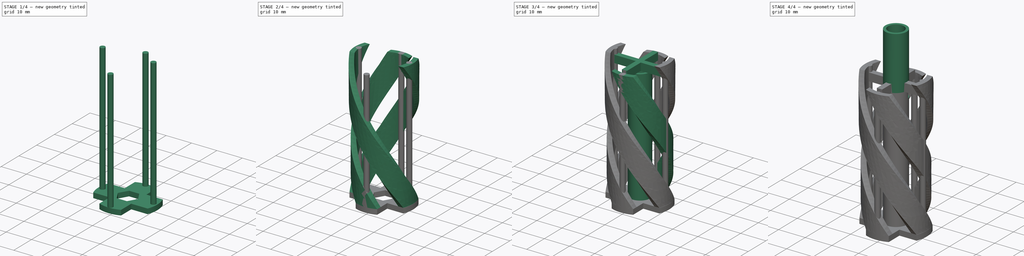
[diagram: build sequence overview — one tinted view per stage of 4, left to right]
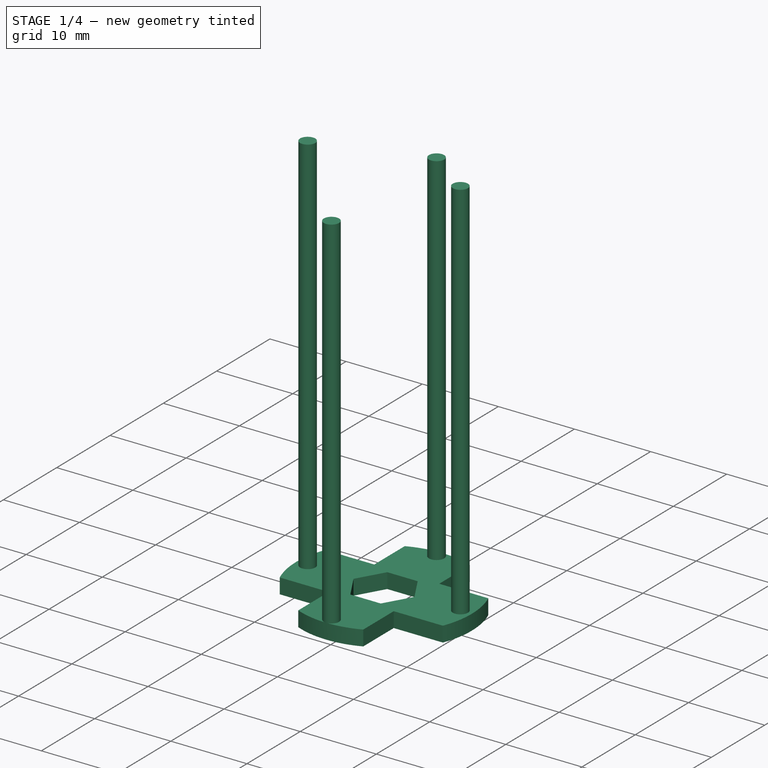
[diagram: stage 1 of 4 — iso view after this stage's code; geometry added in this stage tinted green]
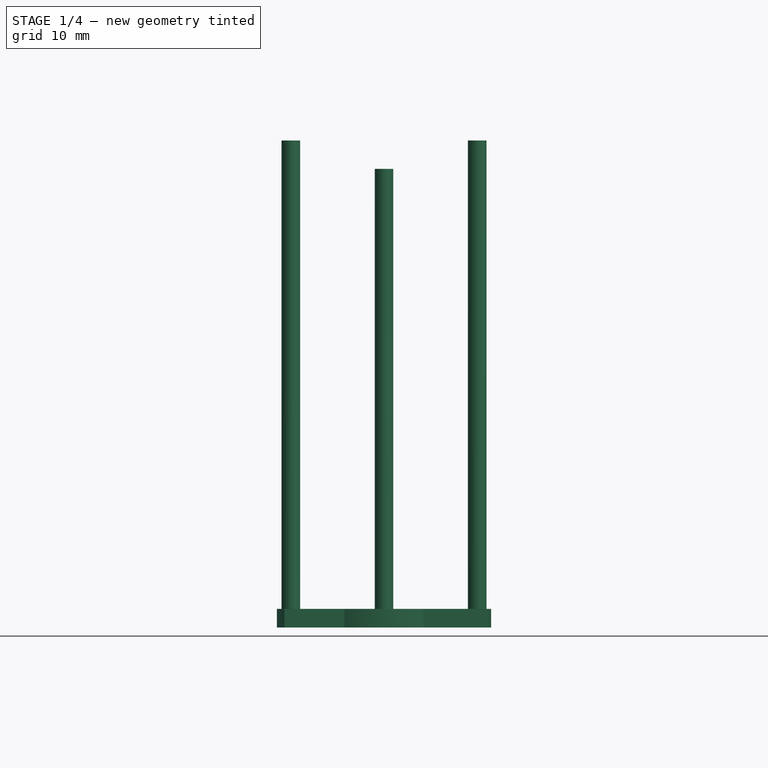
[diagram: stage 1 of 4 — front view after this stage's code; geometry added in this stage tinted green]
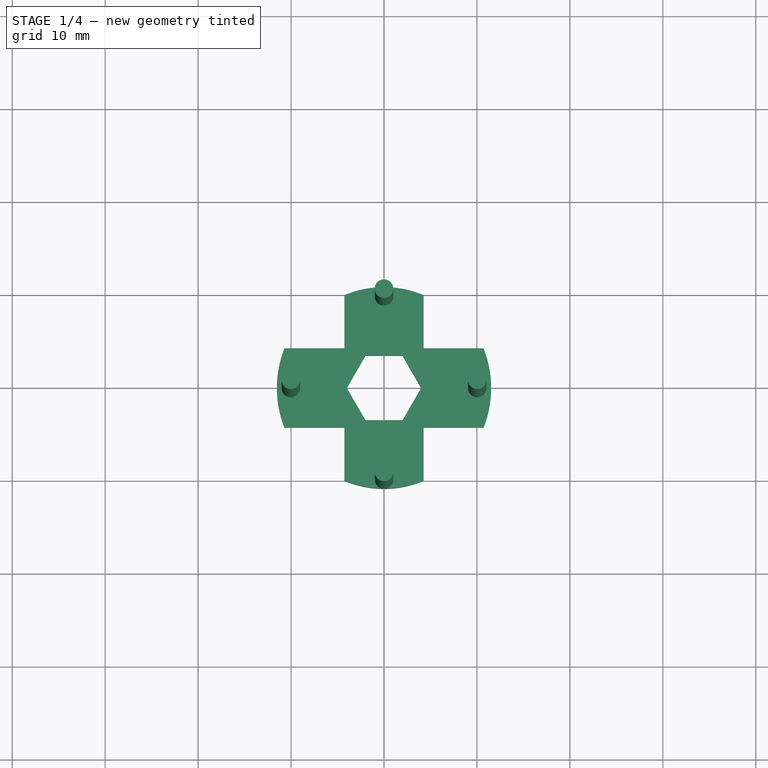
[diagram: stage 1 of 4 — top view after this stage's code; geometry added in this stage tinted green]
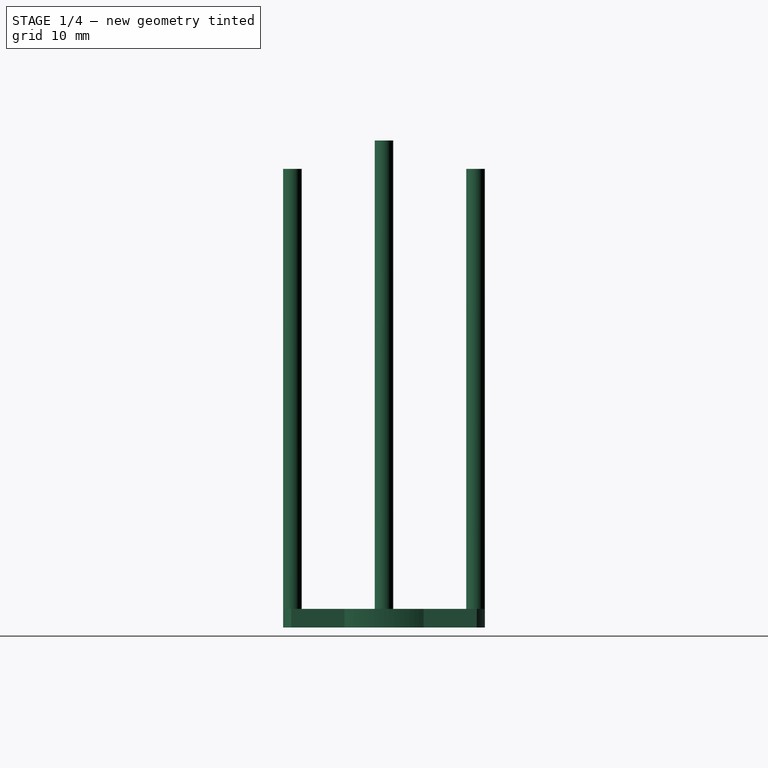
[diagram: stage 1 of 4 — right view after this stage's code; geometry added in this stage tinted green]
FCSTD DOCUMENT  (FreeCAD 0.21R33771 (Git))
Label: QfhAntenna1700
License: All rights reserved
LicenseURL: http://en.wikipedia.org/wiki/All_rights_reserved
objects: Sketcher::SketchObject×11, PartDesign::Pad×7, PartDesign::AdditiveHelix×2, PartDesign::PolarPattern×2, PartDesign::Pocket×2, PartDesign::Body×2, Spreadsheet::Sheet×1, App::DocumentObjectGroup×1
note: 37 computed .brp shape members not serialized (recipe doc carries the construction recipe); baked Part::Feature solids carry a one-line shape summary decoded from their .brp

FEATURE [Spreadsheet::Sheet] Spreadsheet  label="NumbersForRight"
  cells = B1='Info; C1='https://jcoppens.com/ant/qfh/calc.en.php; A2='f0; B2(f0)=1700000000; A3='#turns; B3(turns)=0.5; A4='H1; B4(H1Large)=52.4; C4='@1700 MHz; A5='D1; B5(D1Large)=23.06; A6='H2; B6(H2Small)=49.35; A7='D2; B7(D2Small)=21.71; A8='radiusInner; B8(radiusInner)=4; A9='margin; B9(margin)=0.2; A10='widthFoil; B10(widthFoil)=5; A11='helixThickness; B11(helixThickness)=2; A12='heightSmall; B12(heightSmall)==H1Large - H2Small - helixThickness; C12='Padding to hold small helix between large; A13='radiusCenter; B13(radiusCenter)=6; A14='direction; B14(direction)=0; A15='helixElevation; B15(helixElevation)==atan(H1Large / (pi * D1Large)); A16='helixBase; B16(helixBase)==widthFoil / sin(helixElevation); A17='lengthSleeve; B17(lengthSleeve)==0.24 * 300000000 / f0; B18='Calculated; C18='Do not change
FEATURE [Sketcher::SketchObject] Sketch
  FullyConstrained = true
  MapMode = 5
  Support = -> [XY_Plane]
  expr: Constraints[1] = Spreadsheet.helixBase
  expr: Constraints[25] = Spreadsheet.helixBase
  expr: Constraints[29] = Spreadsheet.D2Small
  expr: Constraints[4] = Spreadsheet.D1Large
  expr: Constraints[50] = 8
  sketch-geometry (19):
    g0: ArcOfCircle CenterX=0 CenterY=0 CenterZ=0 NormalX=0 NormalY=0 NormalZ=1 AngleXU=0 Radius=11.53 StartAngle=2.76262 EndAngle=3.52057
    g1: ArcOfCircle CenterX=0 CenterY=0 CenterZ=0 NormalX=0 NormalY=0 NormalZ=1 AngleXU=0 Radius=11.53 StartAngle=5.90421 EndAngle=6.66216
    g2: ArcOfCircle CenterX=0 CenterY=0 CenterZ=0 NormalX=0 NormalY=0 NormalZ=1 AngleXU=0 Radius=10.855 StartAngle=1.16693 EndAngle=1.97466
    g3: ArcOfCircle CenterX=0 CenterY=0 CenterZ=0 NormalX=0 NormalY=0 NormalZ=1 AngleXU=0 Radius=10.855 StartAngle=4.30853 EndAngle=5.11625
    g4: LineSegment StartX=-10.7119 StartY=4.26572 StartZ=0 EndX=-4.26572 EndY=4.26572 EndZ=0
    g5: LineSegment StartX=-4.26572 StartY=4.26572 StartZ=0 EndX=-4.26572 EndY=9.98172 EndZ=0
    g6: LineSegment StartX=4.26572 StartY=9.98172 StartZ=0 EndX=4.26572 EndY=4.26572 EndZ=0
    g7: LineSegment StartX=4.26572 StartY=4.26572 StartZ=0 EndX=10.7119 EndY=4.26572 EndZ=0
    g8: LineSegment StartX=10.7119 StartY=-4.26572 StartZ=0 EndX=4.26572 EndY=-4.26572 EndZ=0
    g9: LineSegment StartX=4.26572 StartY=-4.26572 StartZ=0 EndX=4.26572 EndY=-9.98172 EndZ=0
    g10: LineSegment StartX=-10.7119 StartY=-4.26572 StartZ=0 EndX=-4.26572 EndY=-4.26572 EndZ=0
    g11: LineSegment StartX=-4.26572 StartY=-4.26572 StartZ=0 EndX=-4.26572 EndY=-9.98172 EndZ=0
    g12: LineSegment StartX=2 StartY=-3.4641 StartZ=0 EndX=4 EndY=1e-16 EndZ=0
    g13: LineSegment StartX=4 StartY=2e-16 StartZ=0 EndX=2 EndY=3.4641 EndZ=0
    g14: LineSegment StartX=2 StartY=3.4641 StartZ=0 EndX=-2 EndY=3.4641 EndZ=0
    g15: LineSegment StartX=-2 StartY=3.4641 StartZ=0 EndX=-4 EndY=4e-16 EndZ=0
    g16: LineSegment StartX=-4 StartY=3e-16 StartZ=0 EndX=-2 EndY=-3.4641 EndZ=0
    g17: LineSegment StartX=-2 StartY=-3.4641 StartZ=0 EndX=2 EndY=-3.4641 EndZ=0
    g18: Circle CenterX=0 CenterY=0 CenterZ=0 NormalX=0 NormalY=0 NormalZ=1 AngleXU=0 Radius=4
  constraints (48):
    c: Coincident(g0,g-1)
    c: DistanceY(g0,g0) = 8.53144
    c: Horizontal(g0,g1)
    c: Symmetric(g0,g1,g-2)
    c: Distance(g0,g1) = 23.06
    c: Coincident(g0,g1)
    c: Coincident(g2,g0)
    c: Coincident(g3,g0)
    c: Symmetric(g2,g3,g-1)
    c: Vertical(g3,g2)
    c: Coincident(g4,g0)
    c: Horizontal(g4)
    c: Coincident(g5,g4)
    c: Coincident(g5,g2)
    c: Coincident(g6,g2)
    c: Vertical(g6)
    c: Coincident(g7,g6)
    c: Coincident(g7,g1)
    c: Coincident(g8,g1)
    c: Coincident(g9,g8)
    c: Coincident(g9,g3)
    c: Vertical(g9)
    c: Coincident(g10,g0)
    c: Coincident(g11,g10)
    c: Coincident(g11,g3)
    c: DistanceX(g2,g2) = 8.53144
    c: Perpendicular(g5,g4)
    c: Perpendicular(g11,g10)
    c: Perpendicular(g8,g9)
    c: Distance(g2,g3) = 21.71
    c: Symmetric(g4,g6,g-2)
    c: Symmetric(g4,g10,g-1)
    c: Coincident(g12,g13)
    c: Coincident(g13,g14)
    c: Coincident(g14,g15)
    c: Coincident(g15,g16)
    c: Coincident(g16,g17)
    c: Coincident(g17,g12)
    c: Equal(g12, g13-g17) x5
    c: PointOnObject(g12,g18)
    c: PointOnObject(g13,g18)
    c: PointOnObject(g14,g18)
    c: PointOnObject(g15,g18)
    c: PointOnObject(g16,g18)
    c: PointOnObject(g17,g18)
    c: Coincident(g18,g0)
    c: Diameter(g18) = 8
    c: Horizontal(g17)
FEATURE [PartDesign::Pad] Pad  label="BaseTop"
  Direction = (0,0,1)
  Length = 2
  Length2 = 10
  Profile = -> Sketch
  ReferenceAxis = -> Sketch [N_Axis]
  Type = 0
  expr: Length = Spreadsheet.helixThickness
FEATURE [Sketcher::SketchObject] Sketch046
  FullyConstrained = true
  MapMode = 5
  Placement = pos=(0,0,2) rot=(0,0,1;0rad)
  Support = -> [Pad]
  expr: Constraints[2] = Spreadsheet.D1Large - Spreadsheet.helixThickness - 1
  expr: Constraints[4] = Spreadsheet.helixThickness
  sketch-geometry (2):
    g0: Circle CenterX=-10.03 CenterY=0 CenterZ=0 NormalX=0 NormalY=0 NormalZ=1 AngleXU=0 Radius=1
    g1: Circle CenterX=10.03 CenterY=0 CenterZ=0 NormalX=0 NormalY=0 NormalZ=1 AngleXU=0 Radius=1
  constraints (5):
    c: PointOnObject(g0,g-1)
    c: Symmetric(g0,g1,g-2)
    c: DistanceX(g0,g1) = 20.06
    c: Equal(g1,g0)
    c: Diameter(g1) = 2
FEATURE [PartDesign::Pad] Pad036  label="LargeSupport"
  BaseFeature = -> Pad
  Direction = (0,0,1)
  Length = 50.4
  Length2 = 10
  Profile = -> Sketch046
  ReferenceAxis = -> Sketch046 [N_Axis]
  Type = 0
  expr: Length = Spreadsheet.H1Large - Spreadsheet.helixThickness
FEATURE [Sketcher::SketchObject] Sketch047
  FullyConstrained = true
  MapMode = 5
  Placement = pos=(0,0,2) rot=(0,0,1;0rad)
  Support = -> [Pad036]
  expr: Constraints[2] = Spreadsheet.D2Small - Spreadsheet.helixThickness
  expr: Constraints[4] = Spreadsheet.helixThickness
  sketch-geometry (2):
    g0: Circle CenterX=0 CenterY=9.855 CenterZ=0 NormalX=0 NormalY=0 NormalZ=1 AngleXU=0 Radius=1
    g1: Circle CenterX=0 CenterY=-9.855 CenterZ=0 NormalX=0 NormalY=0 NormalZ=1 AngleXU=0 Radius=1
  constraints (5):
    c: PointOnObject(g0,g-2)
    c: Symmetric(g0,g1,g-1)
    c: DistanceY(g1,g0) = 19.71
    c: Equal(g0,g1)
    c: Diameter(g0) = 2
FEATURE [PartDesign::Pad] Pad037  label="SmallSupport"
  BaseFeature = -> Pad036
  Direction = (0,0,1)
  Length = 47.35
  Length2 = 10
  Profile = -> Sketch047
  ReferenceAxis = -> Sketch047 [N_Axis]
  Type = 0
  expr: Length = Spreadsheet.H2Small - Spreadsheet.helixThickness
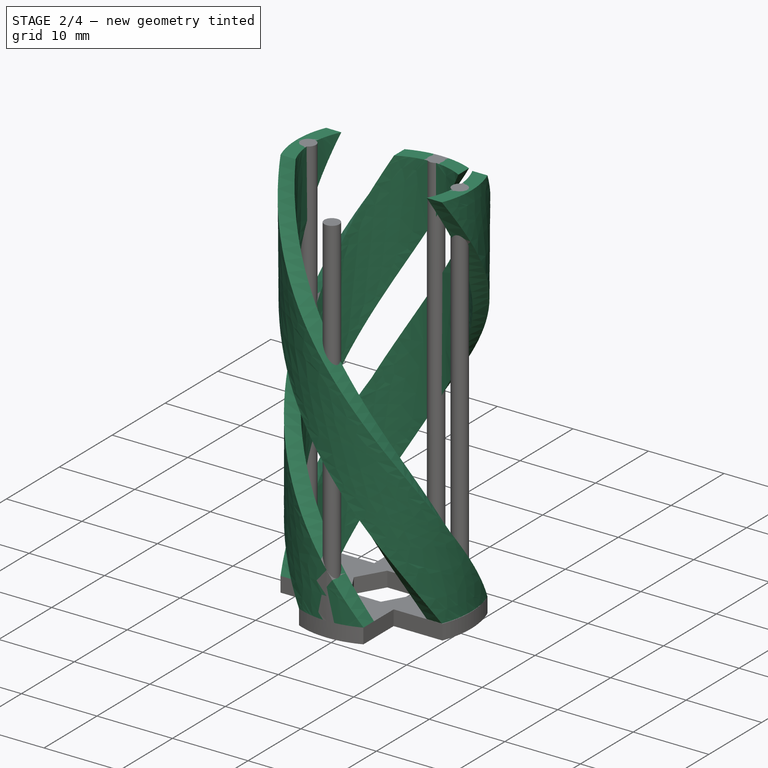
[diagram: stage 2 of 4 — iso view after this stage's code; geometry added in this stage tinted green]
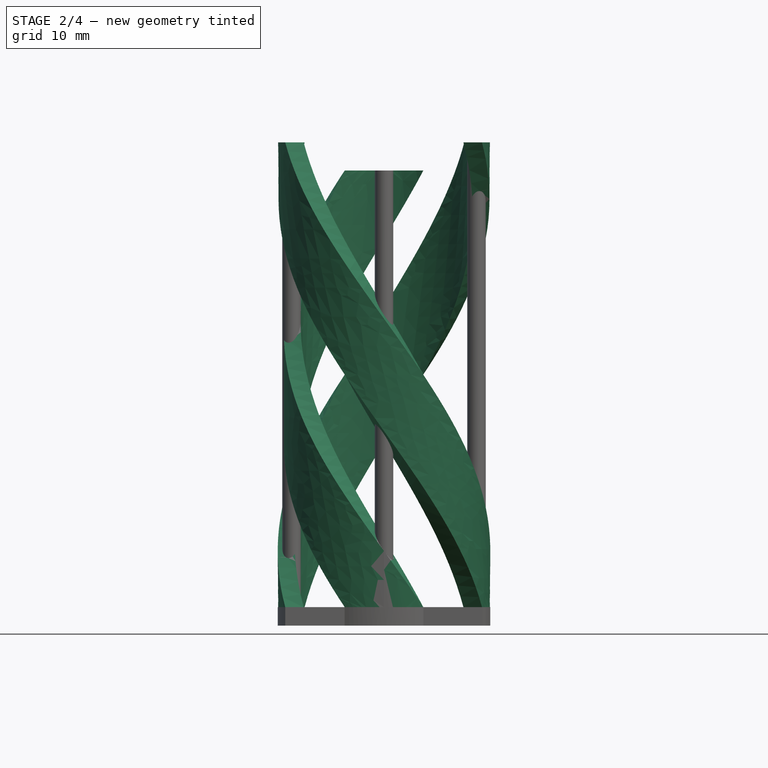
[diagram: stage 2 of 4 — front view after this stage's code; geometry added in this stage tinted green]
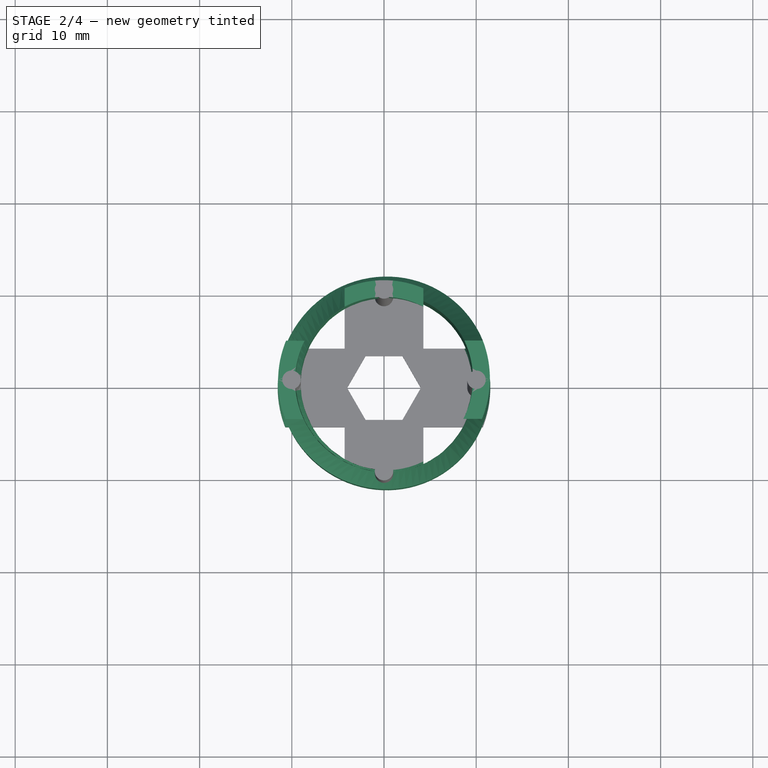
[diagram: stage 2 of 4 — top view after this stage's code; geometry added in this stage tinted green]
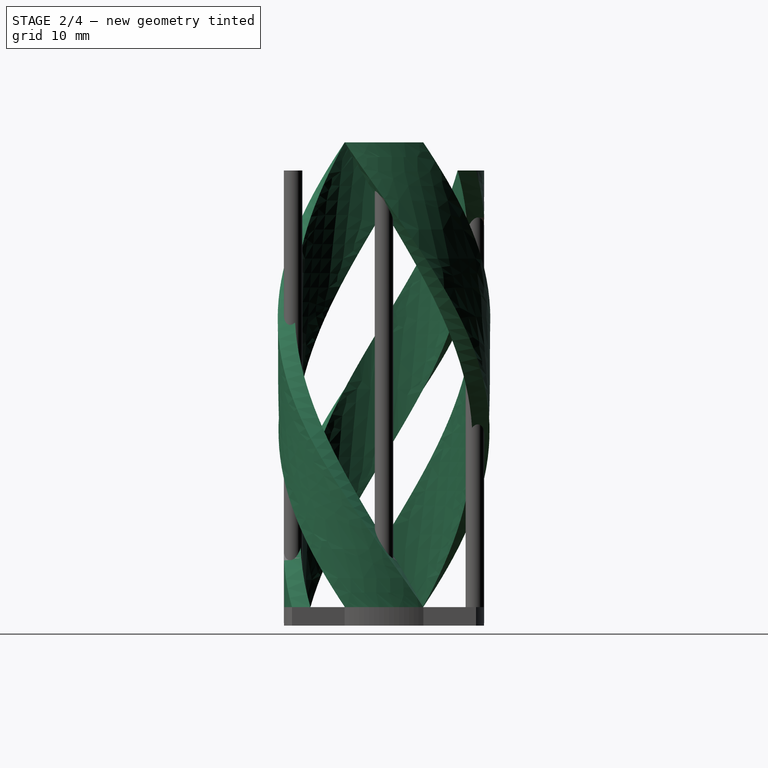
[diagram: stage 2 of 4 — right view after this stage's code; geometry added in this stage tinted green]
FEATURE [Sketcher::SketchObject] Sketch048
  ExternalGeometry = -> [Pad037]
  FullyConstrained = false
  MapMode = 5
  Placement = pos=(0,0,2) rot=(0,0,1;0rad)
  Support = -> [Pad037]
  expr: Constraints[3] = Spreadsheet.helixThickness
  sketch-geometry (4):
    g0: ArcOfCircle CenterX=0.00961287 CenterY=-0.11719 CenterZ=0 NormalX=0 NormalY=0 NormalZ=1 AngleXU=0 Radius=11.4961 StartAngle=2.75226 EndAngle=3.51079
    g1: LineSegment StartX=-10.6262 StartY=4.24638 StartZ=0 EndX=-8.61143 EndY=4.23625 EndZ=0
    g2: LineSegment StartX=-10.7119 StartY=-4.26572 StartZ=0 EndX=-8.71189 EndY=-4.26572 EndZ=0
    g3: ArcOfCircle CenterX=0.00961287 CenterY=-0.11719 CenterZ=0 NormalX=0 NormalY=0 NormalZ=1 AngleXU=0 Radius=9.65789 StartAngle=2.67397 EndAngle=3.58559
  constraints (8):
    c: Coincident(g1,g0)
    c: Coincident(g2,g0)
    c: Horizontal(g2)
    c: DistanceX(g2,g2) = 2
    c: Coincident(g3,g0)
    c: Coincident(g3,g1)
    c: Coincident(g3,g2)
    c: Coincident(g0,g-3)
FEATURE [PartDesign::AdditiveHelix] AdditiveHelix  label="LargeHelixA"
  Angle = 0
  Axis = (1e-16,1e-16,1)
  Base = (0,0,0)
  BaseFeature = -> Pad037
  Growth = 0
  HasBeenEdited = true
  Height = 50.4
  LeftHanded = true
  Mode = 2
  Outside = false
  Pitch = 100.8
  Profile = -> Sketch048
  ReferenceAxis = -> Z_Axis
  Turns = 0.5
  expr: Height = Spreadsheet.H1Large - Spreadsheet.helixThickness
  expr: Turns = Spreadsheet.turns
FEATURE [PartDesign::PolarPattern] PolarPattern001  label="LargeHelixB"
  Angle = 360
  Axis = -> Sketch048 [N_Axis]
  BaseFeature = -> AdditiveHelix
  Occurrences = 2
  Originals = -> [AdditiveHelix]
FEATURE [PartDesign::Body] Body001  label="InnerSupport"
  Group = -> [Sketch050,Pad038,Sketch051,Pad039,Sketch052,Pad040,Sketch053,Pad041,Sketch054,Pocket,Sketch055,Pocket001]
  Origin = -> Origin001
  Tip = -> Pocket001
FEATURE [Sketcher::SketchObject] Sketch056
  ExternalGeometry = -> [PolarPattern001]
  FullyConstrained = true
  MapMode = 5
  Placement = pos=(0,0,2) rot=(0,0,1;0rad)
  Support = -> [PolarPattern001]
  sketch-geometry (4):
    g0: ArcOfCircle CenterX=0 CenterY=0 CenterZ=0 NormalX=0 NormalY=0 NormalZ=1 AngleXU=0 Radius=10.855 StartAngle=4.30853 EndAngle=5.11625
    g1: ArcOfCircle CenterX=0 CenterY=0 CenterZ=0 NormalX=0 NormalY=0 NormalZ=1 AngleXU=0 Radius=9.05009 StartAngle=4.22157 EndAngle=5.2032
    g2: LineSegment StartX=-4.26572 StartY=-7.98172 StartZ=0 EndX=-4.26572 EndY=-9.98172 EndZ=0
    g3: LineSegment StartX=4.26572 StartY=-7.98172 StartZ=0 EndX=4.26572 EndY=-9.98172 EndZ=0
  constraints (11):
    c: Coincident(g0,g-1)
    c: Coincident(g0,g-3)
    c: Coincident(g1,g0)
    c: PointOnObject(g1,g-3)
    c: PointOnObject(g1,g-4)
    c: Coincident(g2,g1)
    c: Coincident(g2,g0)
    c: Coincident(g3,g1)
    c: Coincident(g3,g0)
    c: Vertical(g3)
    c: DistanceY(g0,g1) = 2
FEATURE [PartDesign::AdditiveHelix] AdditiveHelix001  label="SmallHelixB"
  Angle = 0
  Axis = (1e-16,1e-16,1)
  Base = (0,0,0)
  BaseFeature = -> PolarPattern001
  Growth = 0
  HasBeenEdited = true
  Height = 47.35
  LeftHanded = true
  Mode = 2
  Outside = false
  Pitch = 94.7
  Profile = -> Sketch056
  ReferenceAxis = -> Z_Axis
  Turns = 0.5
  expr: Height = Spreadsheet.H2Small - Spreadsheet.helixThickness
  expr: Turns = Spreadsheet.turns
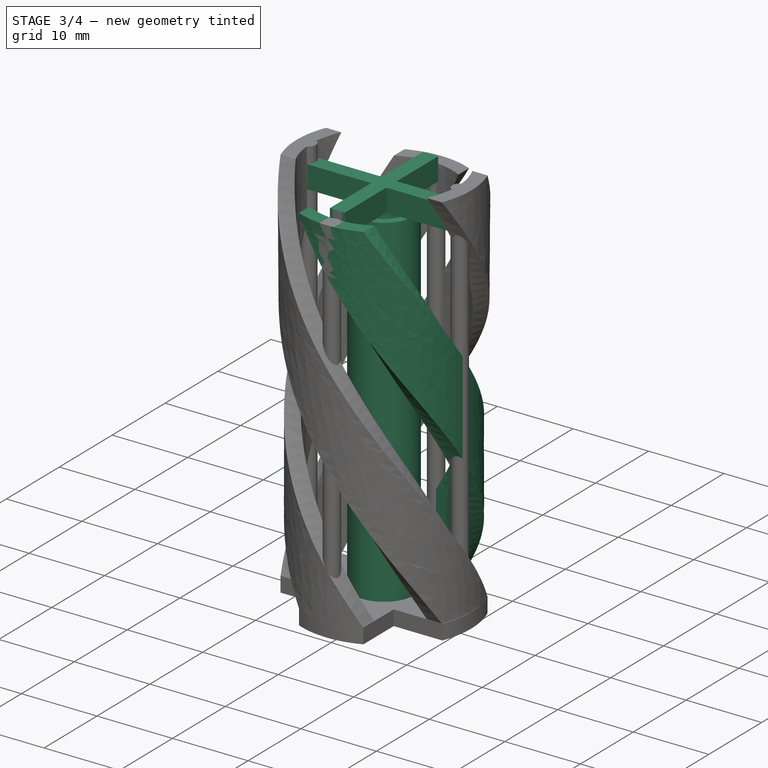
[diagram: stage 3 of 4 — iso view after this stage's code; geometry added in this stage tinted green]
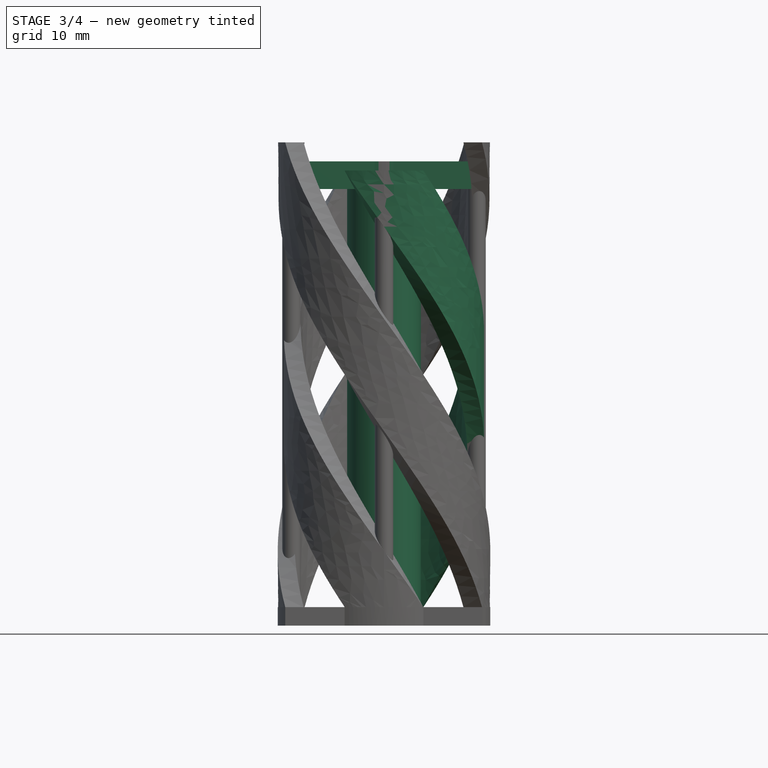
[diagram: stage 3 of 4 — front view after this stage's code; geometry added in this stage tinted green]
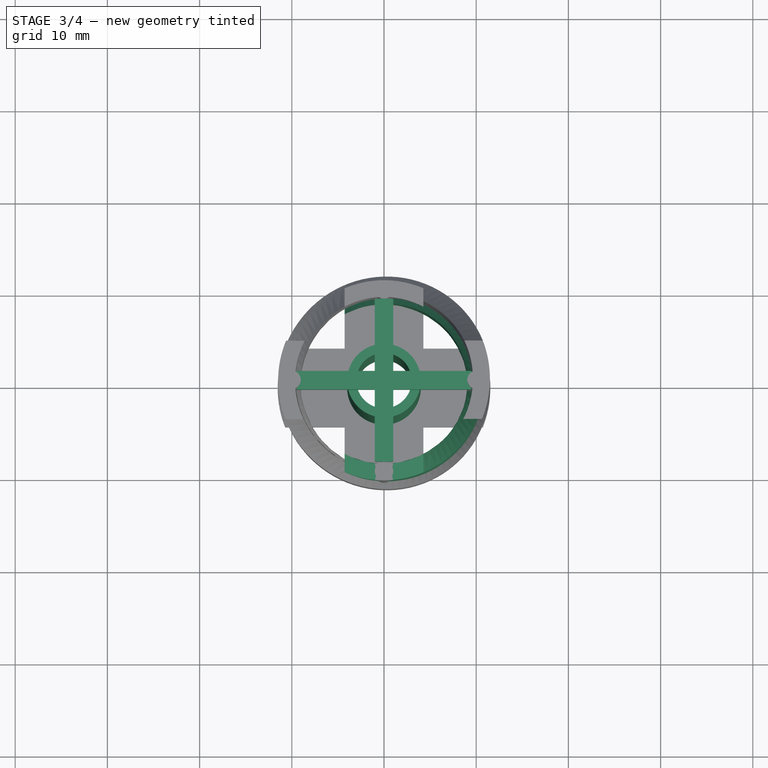
[diagram: stage 3 of 4 — top view after this stage's code; geometry added in this stage tinted green]
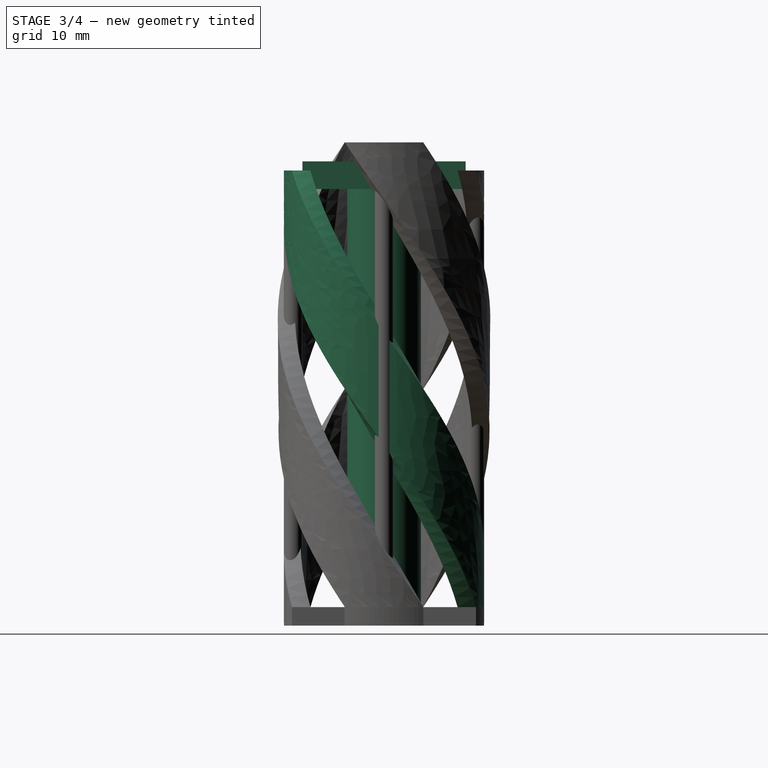
[diagram: stage 3 of 4 — right view after this stage's code; geometry added in this stage tinted green]
FEATURE [Sketcher::SketchObject] Sketch050
  FullyConstrained = true
  MapMode = 5
  Support = -> [XY_Plane001]
  expr: Constraints[18] = Spreadsheet.radiusInner - 0.1
  expr: Constraints[21] = Spreadsheet.radiusInner - 1
  sketch-geometry (8):
    g0: LineSegment StartX=1.95 StartY=3.3775 StartZ=0 EndX=-1.95 EndY=3.3775 EndZ=0
    g1: LineSegment StartX=-1.95 StartY=3.3775 StartZ=0 EndX=-3.9 EndY=4.6156e-12 EndZ=0
    g2: LineSegment StartX=-3.9 StartY=4.6156e-12 StartZ=0 EndX=-1.95 EndY=-3.3775 EndZ=0
    g3: LineSegment StartX=-1.95 StartY=-3.3775 StartZ=0 EndX=1.95 EndY=-3.3775 EndZ=0
    g4: LineSegment StartX=1.95 StartY=-3.3775 StartZ=0 EndX=3.9 EndY=4.6158e-12 EndZ=0
    g5: LineSegment StartX=3.9 StartY=4.6158e-12 StartZ=0 EndX=1.95 EndY=3.3775 EndZ=0
    g6: Circle CenterX=0 CenterY=0 CenterZ=0 NormalX=0 NormalY=0 NormalZ=1 AngleXU=0 Radius=3.9
    g7: Circle CenterX=0 CenterY=0 CenterZ=0 NormalX=0 NormalY=0 NormalZ=1 AngleXU=0 Radius=3
  constraints (18):
    c: Coincident(g0,g1)
    c: Coincident(g1,g2)
    c: Coincident(g2,g3)
    c: Coincident(g3,g4)
    c: Coincident(g4,g5)
    c: Coincident(g5,g0)
    c: Equal(g0, g1-g5) x5
    c: PointOnObject(g0,g6)
    c: PointOnObject(g1,g6)
    c: PointOnObject(g2,g6)
    c: PointOnObject(g3,g6)
    c: PointOnObject(g4,g6)
    c: PointOnObject(g5,g6)
    c: Coincident(g6,g-1)
    c: Radius(g6) = 3.9
    c: Horizontal(g0)
    c: Coincident(g7,g6)
    c: Radius(g7) = 3
FEATURE [PartDesign::Pad] Pad038
  Direction = (0,0,1)
  Length = 2
  Length2 = 10
  Profile = -> Sketch050
  ReferenceAxis = -> Sketch050 [N_Axis]
  Type = 0
  expr: Length = Spreadsheet.helixThickness
FEATURE [Sketcher::SketchObject] Sketch051
  FullyConstrained = true
  MapMode = 5
  Placement = pos=(0,0,2) rot=(0,0,1;0rad)
  Support = -> [Pad038]
  expr: Constraints[2] = Spreadsheet.radiusInner
  expr: Constraints[3] = Spreadsheet.radiusInner - 1
  sketch-geometry (2):
    g0: Circle CenterX=0 CenterY=0 CenterZ=0 NormalX=0 NormalY=0 NormalZ=1 AngleXU=0 Radius=3
    g1: Circle CenterX=0 CenterY=0 CenterZ=0 NormalX=0 NormalY=0 NormalZ=1 AngleXU=0 Radius=4
  constraints (4):
    c: Coincident(g0,g-1)
    c: Coincident(g1,g0)
    c: Radius(g1) = 4
    c: Radius(g0) = 3
FEATURE [PartDesign::Pad] Pad039
  BaseFeature = -> Pad038
  Direction = (0,0,1)
  Length = 45.35
  Length2 = 10
  Profile = -> Sketch051
  ReferenceAxis = -> Sketch051 [N_Axis]
  Type = 0
  expr: Length = Spreadsheet.H2Small - 2 * Spreadsheet.helixThickness
FEATURE [Sketcher::SketchObject] Sketch052
  FullyConstrained = true
  MapMode = 5
  Placement = pos=(0,0,47.35) rot=(0,0,1;0rad)
  Support = -> [Pad039]
  expr: Constraints[10] = Spreadsheet.D2Small - 2 * Spreadsheet.helixThickness
  expr: Constraints[11] = Spreadsheet.D1Large - 2 * Spreadsheet.helixThickness
  sketch-geometry (14):
    g0: LineSegment StartX=1 StartY=-8.79835 StartZ=0 EndX=1 EndY=-1 EndZ=0
    g1: LineSegment StartX=-1 StartY=8.79835 StartZ=0 EndX=-1 EndY=1 EndZ=0
    g2: GeomPoint X=0 Y=0 Z=0
    g3: LineSegment StartX=-9.47739 StartY=-1 StartZ=0 EndX=-1 EndY=-1 EndZ=0
    g4: LineSegment StartX=9.47739 StartY=1 StartZ=0 EndX=1 EndY=1 EndZ=0
    g5: GeomPoint X=0 Y=0 Z=0
    g6: LineSegment StartX=-1 StartY=-1 StartZ=0 EndX=-1 EndY=-8.79835 EndZ=0
    g7: LineSegment StartX=-1 StartY=1 StartZ=0 EndX=-9.47739 EndY=1 EndZ=0
    g8: LineSegment StartX=1 StartY=1 StartZ=0 EndX=1 EndY=8.79835 EndZ=0
    g9: LineSegment StartX=1 StartY=-1 StartZ=0 EndX=9.47739 EndY=-1 EndZ=0
    g10: ArcOfCircle CenterX=0 CenterY=0 CenterZ=0 NormalX=0 NormalY=0 NormalZ=1 AngleXU=0 Radius=8.855 StartAngle=1.45762 EndAngle=1.68397
    g11: ArcOfCircle CenterX=0 CenterY=0 CenterZ=0 NormalX=0 NormalY=0 NormalZ=1 AngleXU=0 Radius=9.53 StartAngle=6.17806 EndAngle=6.38831
    g12: ArcOfCircle CenterX=0 CenterY=0 CenterZ=0 NormalX=0 NormalY=0 NormalZ=1 AngleXU=0 Radius=8.855 StartAngle=4.59922 EndAngle=4.82556
    g13: ArcOfCircle CenterX=0 CenterY=0 CenterZ=0 NormalX=0 NormalY=0 NormalZ=1 AngleXU=0 Radius=9.53 StartAngle=3.03647 EndAngle=3.24672
  constraints (36):
    c: Vertical(g0)
    c: Vertical(g1)
    c: Symmetric(g1,g0,g2)
    c: Coincident(g2,g-1)
    c: Horizontal(g3)
    c: Horizontal(g4)
    c: Symmetric(g9,g7,g5)
    c: Coincident(g5,g2)
    c: DistanceX(g6,g0) = 2
    c: DistanceY(g9,g4) = 2
    c: Distance(g8,g6) = 17.71
    c: Distance(g7,g9) = 19.06
    c: Coincident(g7,g1)
    c: Coincident(g8,g4)
    c: Coincident(g3,g6)
    c: Coincident(g9,g0)
    c: Coincident(g10,g2)
    c: Coincident(g10,g1)
    c: Coincident(g10,g8)
    c: Coincident(g11,g10)
    c: Coincident(g11,g4)
    c: Coincident(g11,g9)
    c: Coincident(g12,g10)
    c: Coincident(g12,g0)
    c: Coincident(g12,g6)
    c: Coincident(g13,g10)
    c: Coincident(g13,g7)
    c: Coincident(g13,g3)
    c: DistanceY(g3,g1) = 2
    c: DistanceX(g3,g0) = 2
    c: Vertical(g3,g1)
    c: Vertical(g0,g4)
    c: Horizontal(g4,g1)
    c: Horizontal(g7)
    c: Horizontal(g0,g3)
    c: Vertical(g8)
FEATURE [PartDesign::Pad] Pad040
  BaseFeature = -> Pad039
  Direction = (0,0,1)
  Length = 3
  Length2 = 10
  Profile = -> Sketch052
  ReferenceAxis = -> Sketch052 [N_Axis]
  Type = 0
FEATURE [PartDesign::PolarPattern] PolarPattern
  Angle = 360
  Axis = -> Sketch056 [N_Axis]
  BaseFeature = -> AdditiveHelix001
  Occurrences = 2
  Originals = -> [AdditiveHelix001]
FEATURE [PartDesign::Body] Body  label="AntennaBody"
  Group = -> [Sketch,Pad,Sketch046,Pad036,Sketch047,Pad037,Sketch048,AdditiveHelix,PolarPattern001,Sketch056,AdditiveHelix001,PolarPattern]
  Origin = -> Origin
  Tip = -> PolarPattern
FEATURE [App::DocumentObjectGroup] Group  label="Antenna"
  Group = -> [Body,Body001]
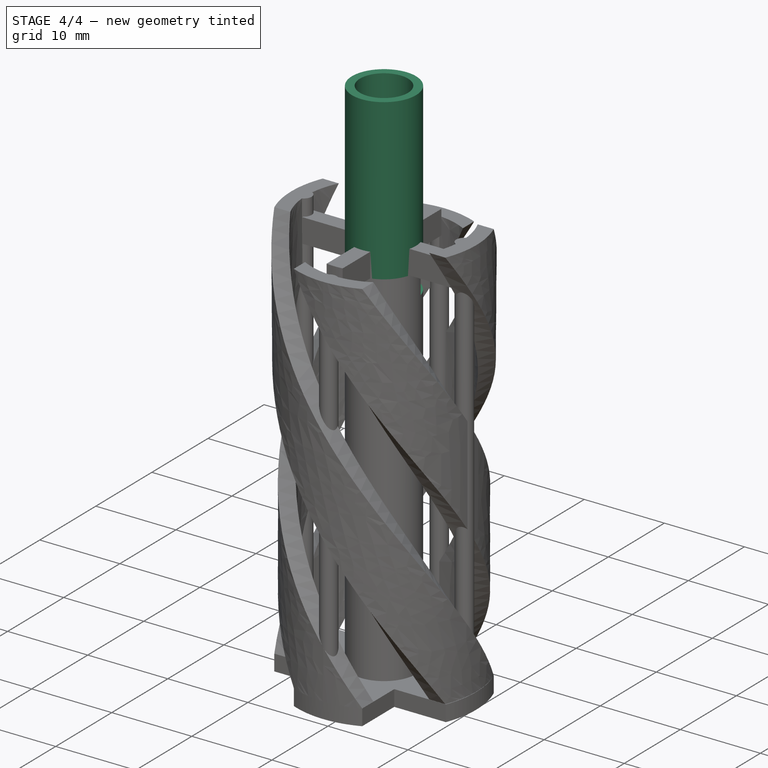
[diagram: stage 4 of 4 — iso view after this stage's code; geometry added in this stage tinted green]
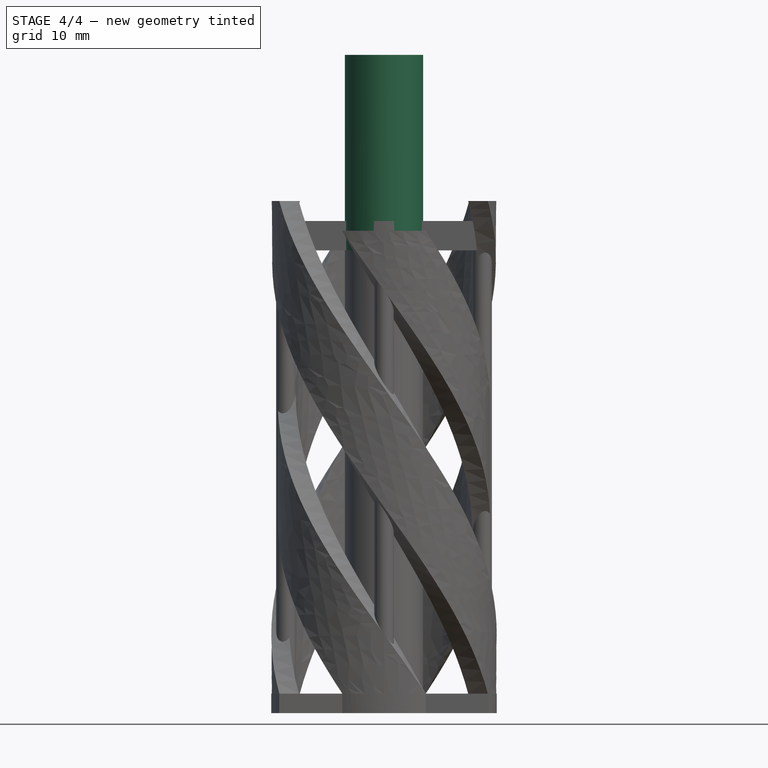
[diagram: stage 4 of 4 — front view after this stage's code; geometry added in this stage tinted green]
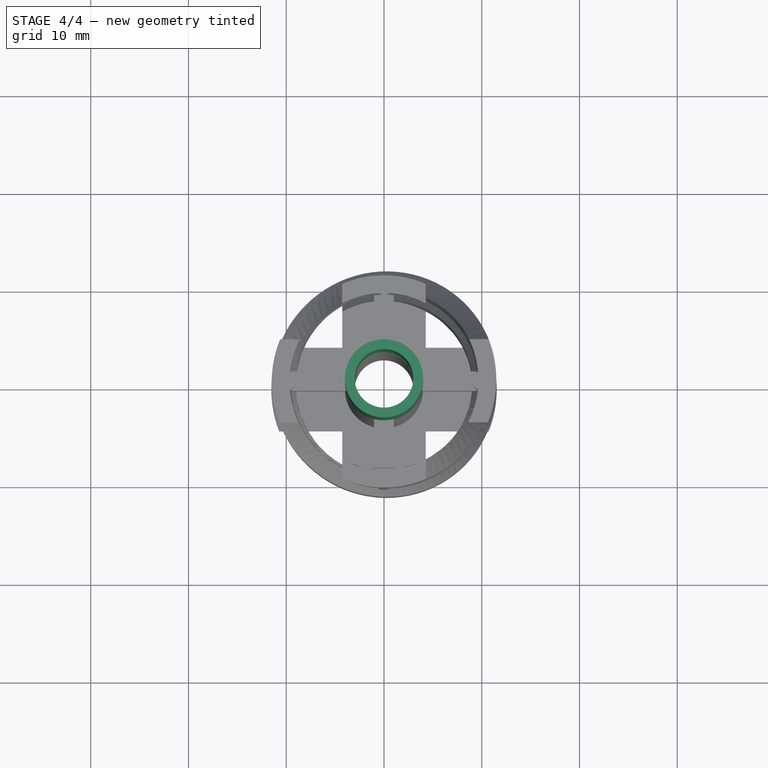
[diagram: stage 4 of 4 — top view after this stage's code; geometry added in this stage tinted green]
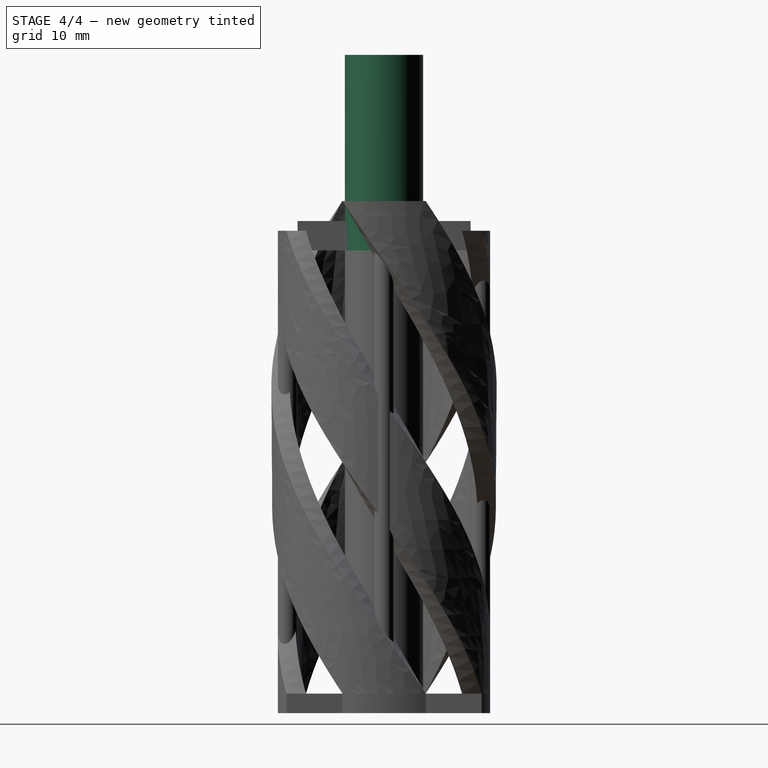
[diagram: stage 4 of 4 — right view after this stage's code; geometry added in this stage tinted green]
FEATURE [Sketcher::SketchObject] Sketch053
  ExternalGeometry = -> [Pad040]
  FullyConstrained = true
  MapMode = 5
  Placement = pos=(0,0,47.35) rot=(0,0,1;0rad)
  Support = -> [Pad040]
  sketch-geometry (2):
    g0: Circle CenterX=0 CenterY=0 CenterZ=0 NormalX=0 NormalY=0 NormalZ=1 AngleXU=0 Radius=3
    g1: Circle CenterX=0 CenterY=0 CenterZ=0 NormalX=0 NormalY=0 NormalZ=1 AngleXU=0 Radius=4
  constraints (4):
    c: Coincident(g0,g-1)
    c: Coincident(g1,g0)
    c: PointOnObject(g-3,g0)
    c: PointOnObject(g-4,g1)
FEATURE [PartDesign::Pad] Pad041
  BaseFeature = -> Pad040
  Direction = (0,0,1)
  Length = 20
  Length2 = 10
  Profile = -> Sketch053
  ReferenceAxis = -> Sketch053 [N_Axis]
  Type = 0
FEATURE [Sketcher::SketchObject] Sketch054
  FullyConstrained = true
  MapMode = 5
  Placement = pos=(0,1,0) rot=(0,0.707107,0.707107;3.14159rad)
  Support = -> [Pad041]
  expr: Constraints[9] = Spreadsheet.lengthSleeve * 1000 + Spreadsheet.helixThickness
  sketch-geometry (5):
    g0: LineSegment StartX=-7.5 StartY=47.3529 StartZ=0 EndX=-7.5 EndY=44.3529 EndZ=0
    g1: LineSegment StartX=-7.5 StartY=44.3529 StartZ=0 EndX=7.5 EndY=44.3529 EndZ=0
    g2: LineSegment StartX=7.5 StartY=44.3529 StartZ=0 EndX=7.5 EndY=47.3529 EndZ=0
    g3: LineSegment StartX=7.5 StartY=47.3529 StartZ=0 EndX=-7.5 EndY=47.3529 EndZ=0
    g4: GeomPoint X=4e-16 Y=45.8529 Z=0
  constraints (12):
    c: Coincident(g0,g1)
    c: Coincident(g1,g2)
    c: Coincident(g2,g3)
    c: Coincident(g3,g0)
    c: Horizontal(g3)
    c: Vertical(g0)
    c: Vertical(g2)
    c: Symmetric(g1,g0,g4)
    c: DistanceY(g1,g2) = 3
    c: DistanceY(g-1,g0) = 44.3529
    c: DistanceX(g0,g1) = 15
    c: Symmetric(g1,g0,g-2)
FEATURE [PartDesign::Pocket] Pocket
  BaseFeature = -> Pad041
  Direction = (0,-1,2e-16)
  Length = 5
  Length2 = 5
  Profile = -> Sketch054
  ReferenceAxis = -> Sketch054 [N_Axis]
  Reversed = true
  Type = 0
FEATURE [Sketcher::SketchObject] Sketch055
  ExternalGeometry = -> [Pocket]
  FullyConstrained = true
  MapMode = 5
  Placement = pos=(0,0,67.35) rot=(0,0,1;0rad)
  Support = -> [Pocket]
  sketch-geometry (1):
    g0: Circle CenterX=0 CenterY=0 CenterZ=0 NormalX=0 NormalY=0 NormalZ=1 AngleXU=0 Radius=3
  constraints (2):
    c: Coincident(g0,g-3)
    c: Tangent(g0,g-3)
FEATURE [PartDesign::Pocket] Pocket001
  BaseFeature = -> Pocket
  Direction = (0,0,-1)
  Length = 5
  Length2 = 5
  Profile = -> Sketch055
  ReferenceAxis = -> Sketch055 [N_Axis]
  Type = 1
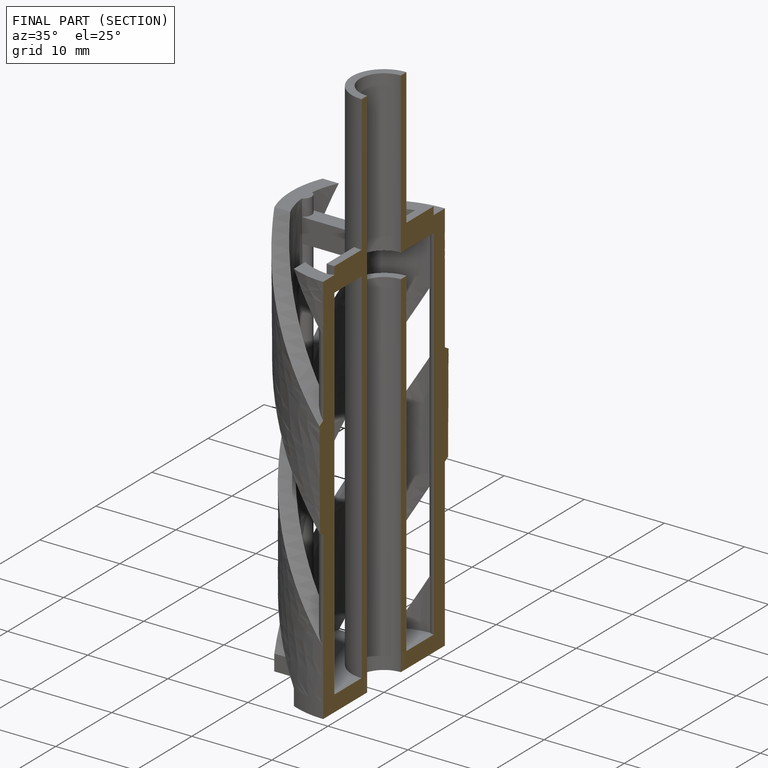
[diagram: finished part — half-section view (interior)]
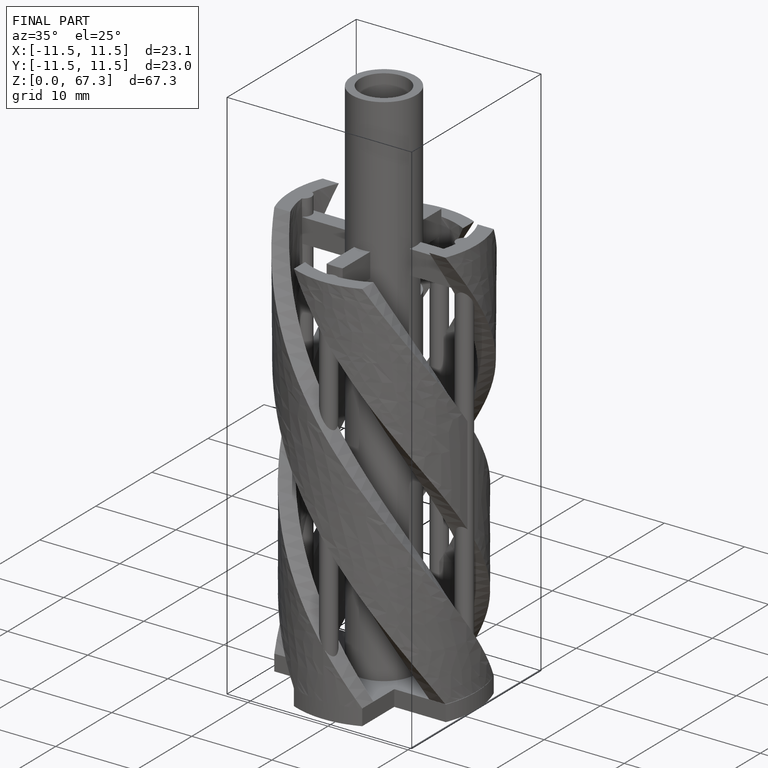
[diagram: finished part — iso view with bounding-box wireframe]
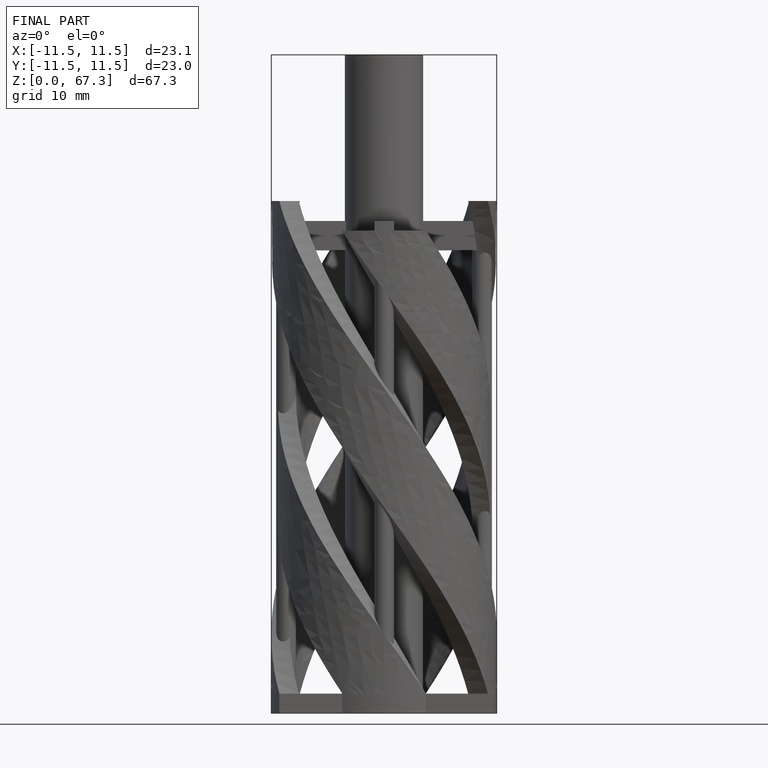
[diagram: finished part — front view with bounding-box wireframe]
